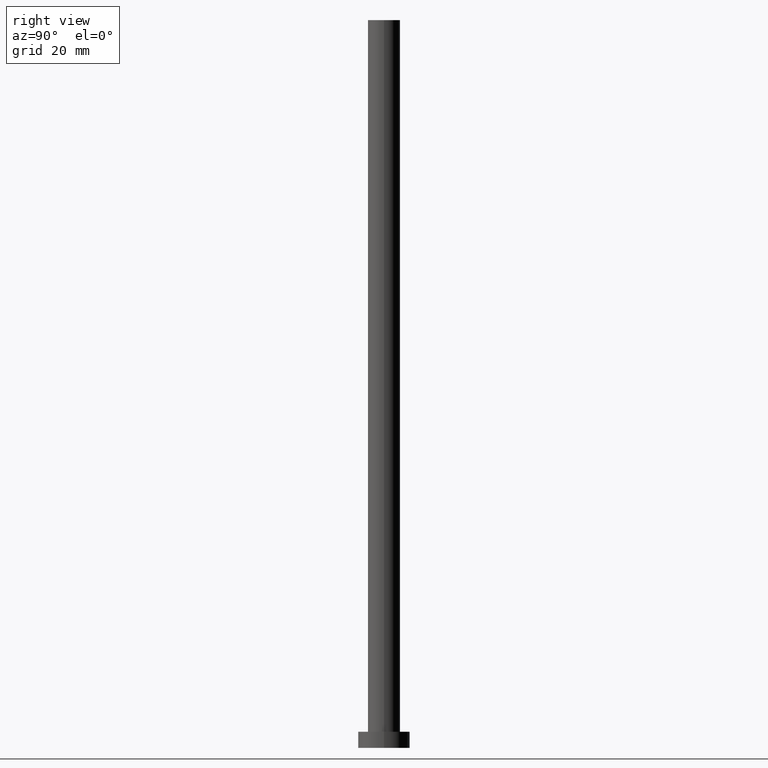
[diagram: clean part render]
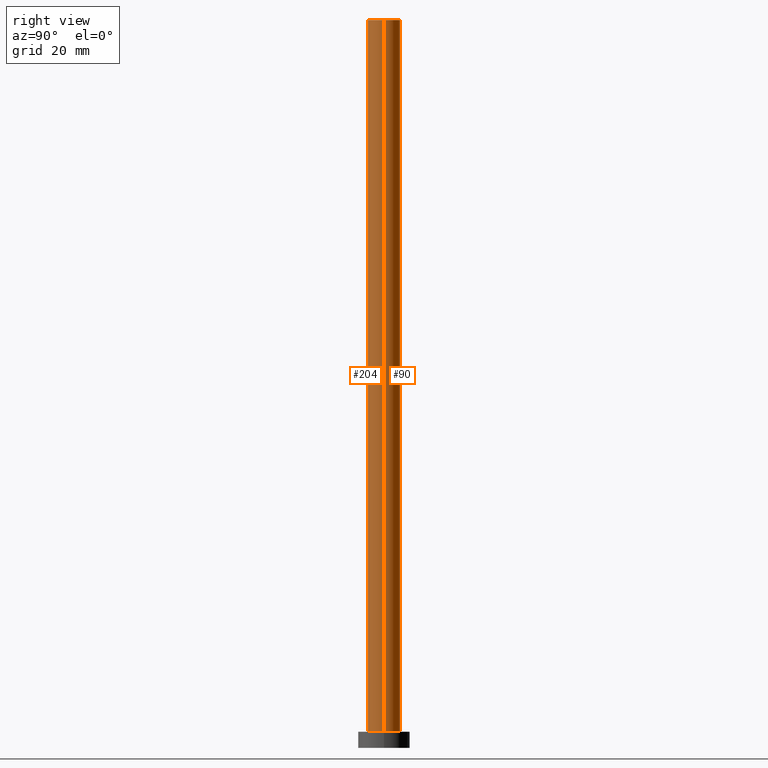
[diagram: same view with one multi-face feature highlighted, each face labeled with its STEP entity id]
A machine part, right view. The highlighted faces form ONE feature: a constant-radius fillet chain: 2 tangent blend faces with common blend radius 5 mm. The faces share edges in the B-rep.
Their STEP definitions:
[1] entity #204 (Cylinder):
#15 = VERTEX_POINT ( 'NONE', #191 ) ;
#22 = CARTESIAN_POINT ( 'NONE',  ( 0.000000000000000000, 0.000000000000000000, 5.000000000000000000 ) ) ;
#23 = CARTESIAN_POINT ( 'NONE',  ( 5.000000000000000888, 6.123233995736767268E-16, 5.000000000000000000 ) ) ;
#25 = CARTESIAN_POINT ( 'NONE',  ( -5.000000000000000888, 0.000000000000000000, 5.000000000000000000 ) ) ;
#31 = LINE ( 'NONE', #190, #97 ) ;
#35 = VECTOR ( 'NONE', #218, 1000.000000000000000 ) ;
#40 = DIRECTION ( 'NONE',  ( 1.000000000000000000, 0.000000000000000000, 0.000000000000000000 ) ) ;
#46 = CARTESIAN_POINT ( 'NONE',  ( 5.000000000000000888, 6.123233995736767268E-16, 225.0000000000000000 ) ) ;
#56 = ORIENTED_EDGE ( 'NONE', *, *, #87, .T. ) ;
#60 = AXIS2_PLACEMENT_3D ( 'NONE', #67, #200, #213 ) ;
#63 = CARTESIAN_POINT ( 'NONE',  ( 0.000000000000000000, 0.000000000000000000, 225.0000000000000000 ) ) ;
#67 = CARTESIAN_POINT ( 'NONE',  ( 0.000000000000000000, 0.000000000000000000, 225.0000000000000000 ) ) ;
#68 = DIRECTION ( 'NONE',  ( 0.000000000000000000, 0.000000000000000000, 1.000000000000000000 ) ) ;
#76 = EDGE_CURVE ( 'NONE', #15, #166, #208, .T. ) ;
#87 = EDGE_CURVE ( 'NONE', #15, #146, #105, .T. ) ;
#93 = VERTEX_POINT ( 'NONE', #23 ) ;
#97 = VECTOR ( 'NONE', #226, 1000.000000000000000 ) ;
#102 = CIRCLE ( 'NONE', #135, 5.000000000000000888 ) ;
#105 = LINE ( 'NONE', #230, #35 ) ;
#118 = AXIS2_PLACEMENT_3D ( 'NONE', #63, #136, #40 ) ;
#127 = ORIENTED_EDGE ( 'NONE', *, *, #76, .F. ) ;
#131 = EDGE_CURVE ( 'NONE', #146, #93, #102, .T. ) ;
#135 = AXIS2_PLACEMENT_3D ( 'NONE', #22, #68, #141 ) ;
#136 = DIRECTION ( 'NONE',  ( 0.000000000000000000, 0.000000000000000000, 1.000000000000000000 ) ) ;
#141 = DIRECTION ( 'NONE',  ( 1.000000000000000000, 0.000000000000000000, 0.000000000000000000 ) ) ;
#144 = FACE_OUTER_BOUND ( 'NONE', #224, .T. ) ;
#146 = VERTEX_POINT ( 'NONE', #25 ) ;
#166 = VERTEX_POINT ( 'NONE', #46 ) ;
#182 = ORIENTED_EDGE ( 'NONE', *, *, #249, .F. ) ;
#187 = ORIENTED_EDGE ( 'NONE', *, *, #131, .T. ) ;
#190 = CARTESIAN_POINT ( 'NONE',  ( 5.000000000000000888, 6.123233995736767268E-16, 225.0000000000000000 ) ) ;
#191 = CARTESIAN_POINT ( 'NONE',  ( -5.000000000000000888, 0.000000000000000000, 225.0000000000000000 ) ) ;
#200 = DIRECTION ( 'NONE',  ( -0.000000000000000000, -0.000000000000000000, -1.000000000000000000 ) ) ;
#204 = ADVANCED_FACE ( 'NONE', ( #144 ), #233, .T. ) ;
#208 = CIRCLE ( 'NONE', #118, 5.000000000000000888 ) ;
#213 = DIRECTION ( 'NONE',  ( -1.000000000000000000, 0.000000000000000000, 0.000000000000000000 ) ) ;
#218 = DIRECTION ( 'NONE',  ( -0.000000000000000000, -0.000000000000000000, -1.000000000000000000 ) ) ;
#224 = EDGE_LOOP ( 'NONE', ( #182, #127, #56, #187 ) ) ;
#226 = DIRECTION ( 'NONE',  ( -0.000000000000000000, -0.000000000000000000, -1.000000000000000000 ) ) ;
#230 = CARTESIAN_POINT ( 'NONE',  ( -5.000000000000000888, 0.000000000000000000, 225.0000000000000000 ) ) ;
#233 = CYLINDRICAL_SURFACE ( 'NONE', #60, 5.000000000000000888 ) ;
#249 = EDGE_CURVE ( 'NONE', #166, #93, #31, .T. ) ;
[2] entity #90 (Cylinder):
#15 = VERTEX_POINT ( 'NONE', #191 ) ;
#23 = CARTESIAN_POINT ( 'NONE',  ( 5.000000000000000888, 6.123233995736767268E-16, 5.000000000000000000 ) ) ;
#25 = CARTESIAN_POINT ( 'NONE',  ( -5.000000000000000888, 0.000000000000000000, 5.000000000000000000 ) ) ;
#31 = LINE ( 'NONE', #190, #97 ) ;
#33 = EDGE_CURVE ( 'NONE', #166, #15, #69, .T. ) ;
#35 = VECTOR ( 'NONE', #218, 1000.000000000000000 ) ;
#43 = FACE_OUTER_BOUND ( 'NONE', #89, .T. ) ;
#46 = CARTESIAN_POINT ( 'NONE',  ( 5.000000000000000888, 6.123233995736767268E-16, 225.0000000000000000 ) ) ;
#53 = AXIS2_PLACEMENT_3D ( 'NONE', #82, #234, #250 ) ;
#59 = ORIENTED_EDGE ( 'NONE', *, *, #231, .T. ) ;
#66 = AXIS2_PLACEMENT_3D ( 'NONE', #101, #81, #132 ) ;
#69 = CIRCLE ( 'NONE', #66, 5.000000000000000888 ) ;
#81 = DIRECTION ( 'NONE',  ( 0.000000000000000000, 0.000000000000000000, 1.000000000000000000 ) ) ;
#82 = CARTESIAN_POINT ( 'NONE',  ( 0.000000000000000000, 0.000000000000000000, 225.0000000000000000 ) ) ;
#87 = EDGE_CURVE ( 'NONE', #15, #146, #105, .T. ) ;
#89 = EDGE_LOOP ( 'NONE', ( #168, #184, #59, #169 ) ) ;
#90 = ADVANCED_FACE ( 'NONE', ( #43 ), #195, .T. ) ;
#93 = VERTEX_POINT ( 'NONE', #23 ) ;
#97 = VECTOR ( 'NONE', #226, 1000.000000000000000 ) ;
#101 = CARTESIAN_POINT ( 'NONE',  ( 0.000000000000000000, 0.000000000000000000, 225.0000000000000000 ) ) ;
#105 = LINE ( 'NONE', #230, #35 ) ;
#106 = CIRCLE ( 'NONE', #111, 5.000000000000000888 ) ;
#111 = AXIS2_PLACEMENT_3D ( 'NONE', #214, #194, #176 ) ;
#132 = DIRECTION ( 'NONE',  ( 1.000000000000000000, 0.000000000000000000, 0.000000000000000000 ) ) ;
#146 = VERTEX_POINT ( 'NONE', #25 ) ;
#166 = VERTEX_POINT ( 'NONE', #46 ) ;
#168 = ORIENTED_EDGE ( 'NONE', *, *, #33, .F. ) ;
#169 = ORIENTED_EDGE ( 'NONE', *, *, #87, .F. ) ;
#176 = DIRECTION ( 'NONE',  ( 1.000000000000000000, 0.000000000000000000, 0.000000000000000000 ) ) ;
#184 = ORIENTED_EDGE ( 'NONE', *, *, #249, .T. ) ;
#190 = CARTESIAN_POINT ( 'NONE',  ( 5.000000000000000888, 6.123233995736767268E-16, 225.0000000000000000 ) ) ;
#191 = CARTESIAN_POINT ( 'NONE',  ( -5.000000000000000888, 0.000000000000000000, 225.0000000000000000 ) ) ;
#194 = DIRECTION ( 'NONE',  ( 0.000000000000000000, 0.000000000000000000, 1.000000000000000000 ) ) ;
#195 = CYLINDRICAL_SURFACE ( 'NONE', #53, 5.000000000000000888 ) ;
#214 = CARTESIAN_POINT ( 'NONE',  ( 0.000000000000000000, 0.000000000000000000, 5.000000000000000000 ) ) ;
#218 = DIRECTION ( 'NONE',  ( -0.000000000000000000, -0.000000000000000000, -1.000000000000000000 ) ) ;
#226 = DIRECTION ( 'NONE',  ( -0.000000000000000000, -0.000000000000000000, -1.000000000000000000 ) ) ;
#230 = CARTESIAN_POINT ( 'NONE',  ( -5.000000000000000888, 0.000000000000000000, 225.0000000000000000 ) ) ;
#231 = EDGE_CURVE ( 'NONE', #93, #146, #106, .T. ) ;
#234 = DIRECTION ( 'NONE',  ( -0.000000000000000000, -0.000000000000000000, -1.000000000000000000 ) ) ;
#249 = EDGE_CURVE ( 'NONE', #166, #93, #31, .T. ) ;
#250 = DIRECTION ( 'NONE',  ( -1.000000000000000000, 0.000000000000000000, 0.000000000000000000 ) ) ;